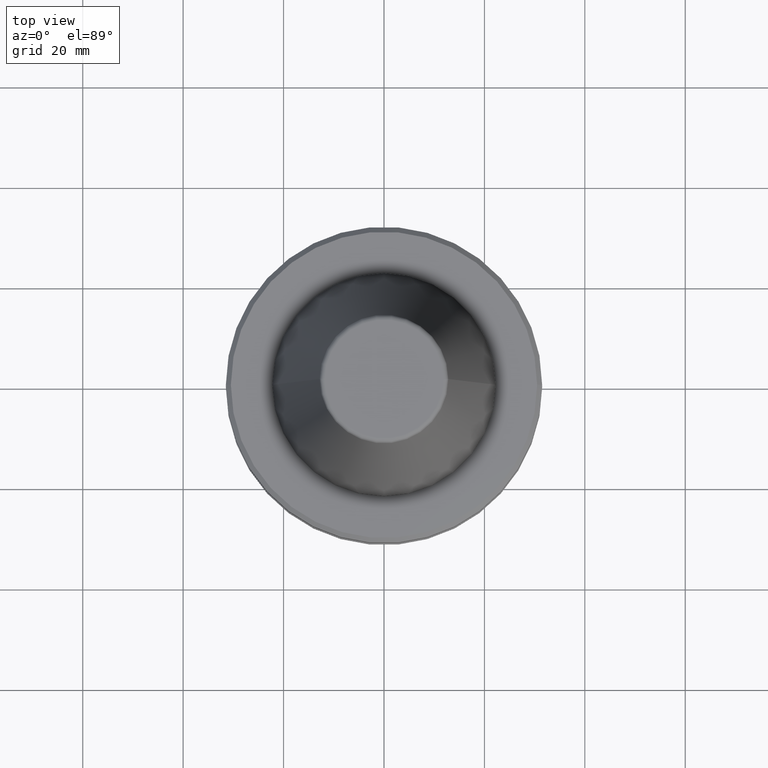
[diagram: clean part render]
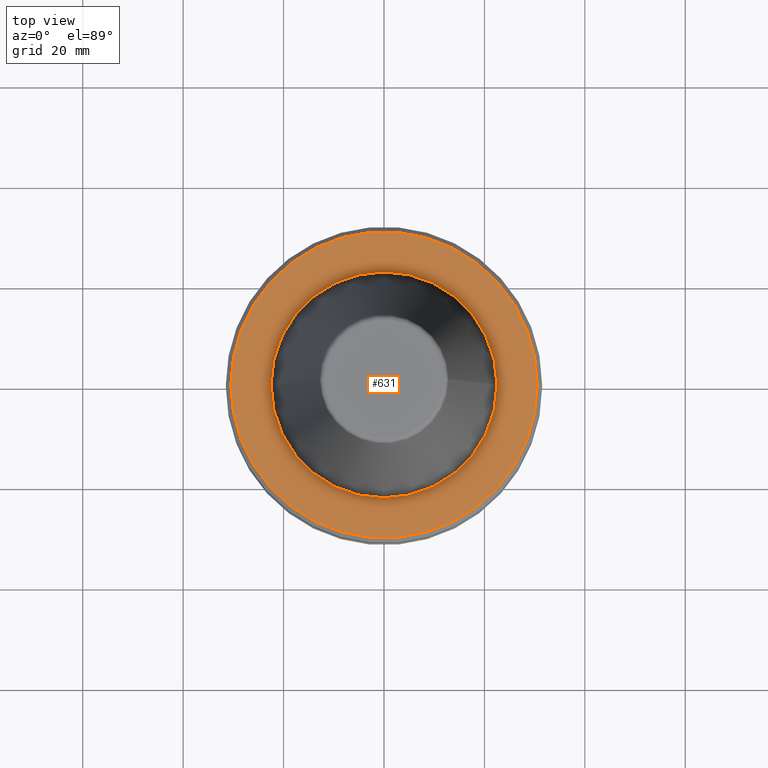
[diagram: same view with one face highlighted and labeled with its STEP entity id]
A machine part, top view. The second image highlights one B-rep face of the part: STEP entity #631.
In plain terms, the highlighted planar face has unit normal (0, 0, -1).
Its self-contained STEP definition (entity closure, byte-faithful):
#3 = FACE_BOUND ( 'NONE', #922, .T. ) ;
#5 = DIRECTION ( 'NONE',  ( 1.000000000000000000, 0.0000000000000000000, 0.0000000000000000000 ) ) ;
#51 = ORIENTED_EDGE ( 'NONE', *, *, #289, .F. ) ;
#60 = CARTESIAN_POINT ( 'NONE',  ( 30.49999999999997200, 3.796405077356791200E-015, -1.999999999999779700 ) ) ;
#66 = DIRECTION ( 'NONE',  ( -1.000000000000000000, 0.0000000000000000000, -0.0000000000000000000 ) ) ;
#80 = VERTEX_POINT ( 'NONE', #557 ) ;
#117 = DIRECTION ( 'NONE',  ( 1.000000000000000000, 0.0000000000000000000, 0.0000000000000000000 ) ) ;
#146 = CARTESIAN_POINT ( 'NONE',  ( -30.49999999999997200, 0.0000000000000000000, -1.999999999999779700 ) ) ;
#157 = DIRECTION ( 'NONE',  ( 1.000000000000000000, 0.0000000000000000000, 0.0000000000000000000 ) ) ;
#175 = CIRCLE ( 'NONE', #945, 30.49999999999997200 ) ;
#183 = VERTEX_POINT ( 'NONE', #146 ) ;
#189 = CARTESIAN_POINT ( 'NONE',  ( 0.0000000000000000000, 0.0000000000000000000, -1.999999999999779700 ) ) ;
#209 = AXIS2_PLACEMENT_3D ( 'NONE', #915, #532, #497 ) ;
#216 = AXIS2_PLACEMENT_3D ( 'NONE', #387, #534, #66 ) ;
#223 = PLANE ( 'NONE',  #216 ) ;
#234 = EDGE_LOOP ( 'NONE', ( #892, #999 ) ) ;
#246 = ORIENTED_EDGE ( 'NONE', *, *, #763, .F. ) ;
#255 = AXIS2_PLACEMENT_3D ( 'NONE', #189, #728, #117 ) ;
#288 = CARTESIAN_POINT ( 'NONE',  ( 0.0000000000000000000, 0.0000000000000000000, -1.999999999999779700 ) ) ;
#289 = EDGE_CURVE ( 'NONE', #80, #489, #321, .T. ) ;
#296 = CARTESIAN_POINT ( 'NONE',  ( 0.0000000000000000000, 0.0000000000000000000, -1.999999999999779700 ) ) ;
#321 = CIRCLE ( 'NONE', #209, 22.49999999999996400 ) ;
#387 = CARTESIAN_POINT ( 'NONE',  ( 0.0000000000000000000, 30.49999999999997200, -1.999999999999779700 ) ) ;
#448 = DIRECTION ( 'NONE',  ( -0.0000000000000000000, -0.0000000000000000000, 1.000000000000000000 ) ) ;
#485 = DIRECTION ( 'NONE',  ( -0.0000000000000000000, -0.0000000000000000000, 1.000000000000000000 ) ) ;
#489 = VERTEX_POINT ( 'NONE', #577 ) ;
#497 = DIRECTION ( 'NONE',  ( 1.000000000000000000, 0.0000000000000000000, 0.0000000000000000000 ) ) ;
#532 = DIRECTION ( 'NONE',  ( -0.0000000000000000000, -0.0000000000000000000, 1.000000000000000000 ) ) ;
#534 = DIRECTION ( 'NONE',  ( 0.0000000000000000000, 0.0000000000000000000, -1.000000000000000000 ) ) ;
#557 = CARTESIAN_POINT ( 'NONE',  ( -22.49999999999996400, 2.755455298081540400E-015, -1.999999999999807500 ) ) ;
#577 = CARTESIAN_POINT ( 'NONE',  ( 22.49999999999996400, 0.0000000000000000000, -1.999999999999807500 ) ) ;
#590 = CIRCLE ( 'NONE', #769, 22.49999999999996400 ) ;
#599 = CIRCLE ( 'NONE', #255, 30.49999999999997200 ) ;
#631 = ADVANCED_FACE ( 'NONE', ( #3, #639 ), #223, .F. ) ;
#638 = EDGE_CURVE ( 'NONE', #996, #183, #599, .T. ) ;
#639 = FACE_OUTER_BOUND ( 'NONE', #234, .T. ) ;
#728 = DIRECTION ( 'NONE',  ( -0.0000000000000000000, -0.0000000000000000000, 1.000000000000000000 ) ) ;
#763 = EDGE_CURVE ( 'NONE', #489, #80, #590, .T. ) ;
#769 = AXIS2_PLACEMENT_3D ( 'NONE', #288, #485, #157 ) ;
#817 = EDGE_CURVE ( 'NONE', #183, #996, #175, .T. ) ;
#892 = ORIENTED_EDGE ( 'NONE', *, *, #817, .T. ) ;
#915 = CARTESIAN_POINT ( 'NONE',  ( 0.0000000000000000000, 0.0000000000000000000, -1.999999999999779700 ) ) ;
#922 = EDGE_LOOP ( 'NONE', ( #246, #51 ) ) ;
#945 = AXIS2_PLACEMENT_3D ( 'NONE', #296, #448, #5 ) ;
#996 = VERTEX_POINT ( 'NONE', #60 ) ;
#999 = ORIENTED_EDGE ( 'NONE', *, *, #638, .T. ) ;